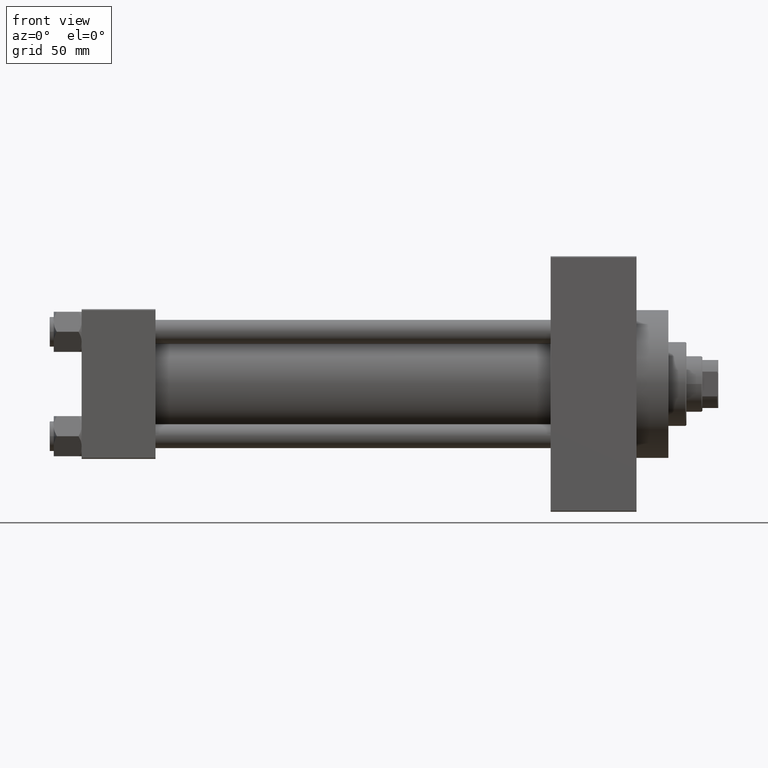
[diagram: clean part render]
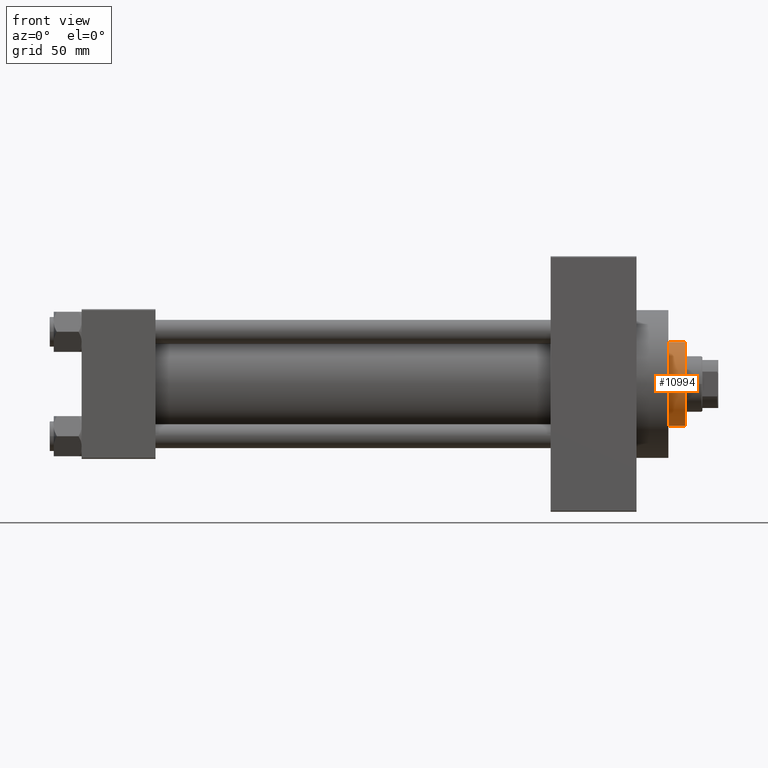
[diagram: same view with one face highlighted and labeled with its STEP entity id]
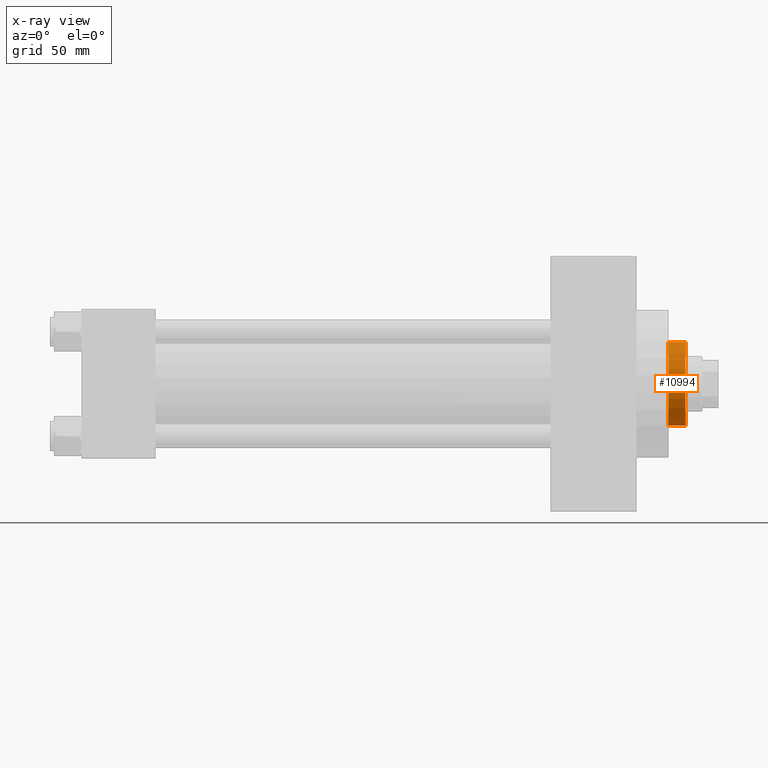
[diagram: x-ray of the same camera — body ghosted, the highlighted face saturated]
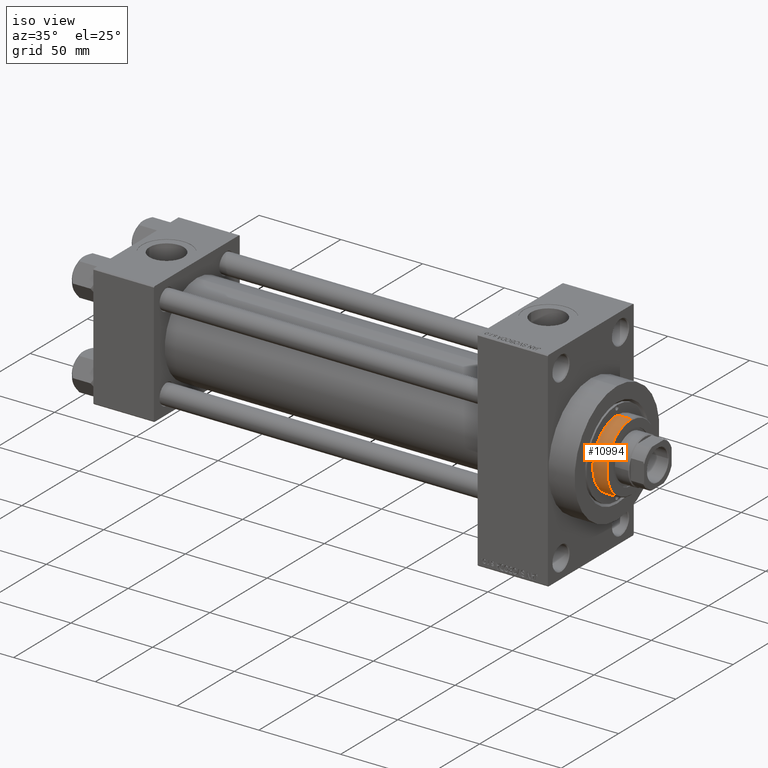
[diagram: same view with one face highlighted and labeled with its STEP entity id]
A machine part, front view. The second image highlights one B-rep face of the part: STEP entity #10994.
The next image is the same camera in x-ray: the body ghosted, the highlighted face saturated — about 0% of this face is hidden behind the body in this view.
A second angle (iso view) of the same face is appended — the face is thin or edge-on in the first view.
In plain terms, the highlighted cylindrical surface (partial cylindrical patch) has radius 21 mm, axis along (-1, 0, 0).
Its self-contained STEP definition (entity closure, byte-faithful):
#1556 = CYLINDRICAL_SURFACE ( 'NONE', #25513, 21.00000000000000000 ) ;
#2414 = CARTESIAN_POINT ( 'NONE',  ( 21.00000000000000000, 2.571758278209441661E-15, 51.75999999999999801 ) ) ;
#3295 = CARTESIAN_POINT ( 'NONE',  ( -21.00000000000000000, 0.000000000000000000, 43.25999999999999801 ) ) ;
#3623 = VECTOR ( 'NONE', #43555, 1000.000000000000000 ) ;
#7382 = VERTEX_POINT ( 'NONE', #2414 ) ;
#8338 = CARTESIAN_POINT ( 'NONE',  ( 0.000000000000000000, 0.000000000000000000, 51.75999999999999801 ) ) ;
#8706 = VERTEX_POINT ( 'NONE', #3295 ) ;
#8808 = ORIENTED_EDGE ( 'NONE', *, *, #27211, .F. ) ;
#9838 = ORIENTED_EDGE ( 'NONE', *, *, #12722, .T. ) ;
#10994 = ADVANCED_FACE ( 'NONE', ( #12837 ), #1556, .T. ) ;
#11953 = AXIS2_PLACEMENT_3D ( 'NONE', #28418, #25067, #13833 ) ;
#12014 = CARTESIAN_POINT ( 'NONE',  ( 21.00000000000000000, 2.571758278209441661E-15, 52.25999999999999801 ) ) ;
#12722 = EDGE_CURVE ( 'NONE', #7382, #37505, #33799, .T. ) ;
#12813 = ORIENTED_EDGE ( 'NONE', *, *, #37359, .T. ) ;
#12837 = FACE_OUTER_BOUND ( 'NONE', #39742, .T. ) ;
#13073 = DIRECTION ( 'NONE',  ( -0.000000000000000000, -0.000000000000000000, -1.000000000000000000 ) ) ;
#13790 = AXIS2_PLACEMENT_3D ( 'NONE', #8338, #41650, #15534 ) ;
#13833 = DIRECTION ( 'NONE',  ( 1.000000000000000000, 0.000000000000000000, 0.000000000000000000 ) ) ;
#15534 = DIRECTION ( 'NONE',  ( 1.000000000000000000, 0.000000000000000000, 0.000000000000000000 ) ) ;
#16089 = CIRCLE ( 'NONE', #13790, 21.00000000000000000 ) ;
#18374 = LINE ( 'NONE', #28907, #3623 ) ;
#23027 = DIRECTION ( 'NONE',  ( -0.000000000000000000, -0.000000000000000000, -1.000000000000000000 ) ) ;
#24407 = EDGE_CURVE ( 'NONE', #37505, #8706, #30303, .T. ) ;
#25067 = DIRECTION ( 'NONE',  ( 0.000000000000000000, 0.000000000000000000, 1.000000000000000000 ) ) ;
#25513 = AXIS2_PLACEMENT_3D ( 'NONE', #42062, #13073, #31257 ) ;
#27211 = EDGE_CURVE ( 'NONE', #28611, #8706, #18374, .T. ) ;
#28418 = CARTESIAN_POINT ( 'NONE',  ( 0.000000000000000000, 0.000000000000000000, 43.25999999999999801 ) ) ;
#28611 = VERTEX_POINT ( 'NONE', #43371 ) ;
#28907 = CARTESIAN_POINT ( 'NONE',  ( -21.00000000000000000, 0.000000000000000000, 52.25999999999999801 ) ) ;
#30303 = CIRCLE ( 'NONE', #11953, 21.00000000000000000 ) ;
#30532 = CARTESIAN_POINT ( 'NONE',  ( 21.00000000000000000, 2.571758278209441661E-15, 43.25999999999999801 ) ) ;
#31257 = DIRECTION ( 'NONE',  ( -1.000000000000000000, 0.000000000000000000, 0.000000000000000000 ) ) ;
#32442 = ORIENTED_EDGE ( 'NONE', *, *, #24407, .T. ) ;
#33799 = LINE ( 'NONE', #12014, #42491 ) ;
#37359 = EDGE_CURVE ( 'NONE', #28611, #7382, #16089, .T. ) ;
#37505 = VERTEX_POINT ( 'NONE', #30532 ) ;
#39742 = EDGE_LOOP ( 'NONE', ( #12813, #9838, #32442, #8808 ) ) ;
#41650 = DIRECTION ( 'NONE',  ( 0.000000000000000000, 0.000000000000000000, -1.000000000000000000 ) ) ;
#42062 = CARTESIAN_POINT ( 'NONE',  ( 0.000000000000000000, 0.000000000000000000, 52.25999999999999801 ) ) ;
#42491 = VECTOR ( 'NONE', #23027, 1000.000000000000000 ) ;
#43371 = CARTESIAN_POINT ( 'NONE',  ( -21.00000000000000000, 0.000000000000000000, 51.75999999999999801 ) ) ;
#43555 = DIRECTION ( 'NONE',  ( -0.000000000000000000, -0.000000000000000000, -1.000000000000000000 ) ) ;